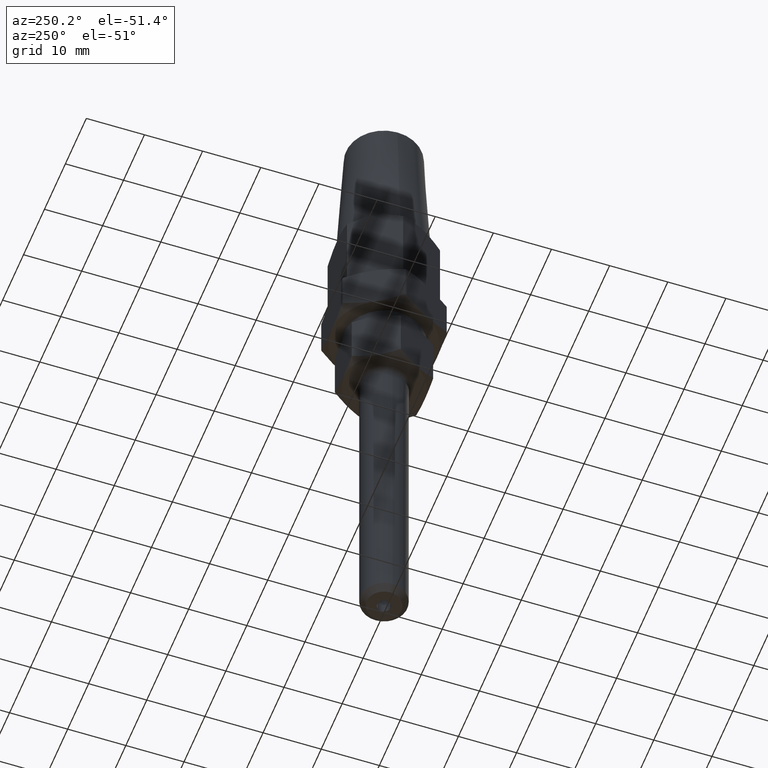
[diagram: clean part render]
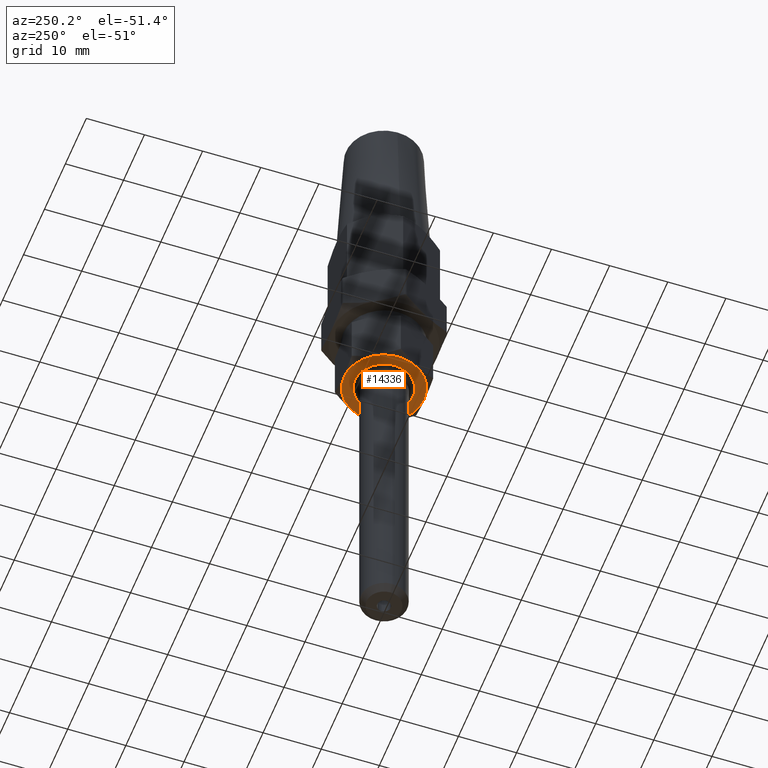
[diagram: same view with one face highlighted and labeled with its STEP entity id]
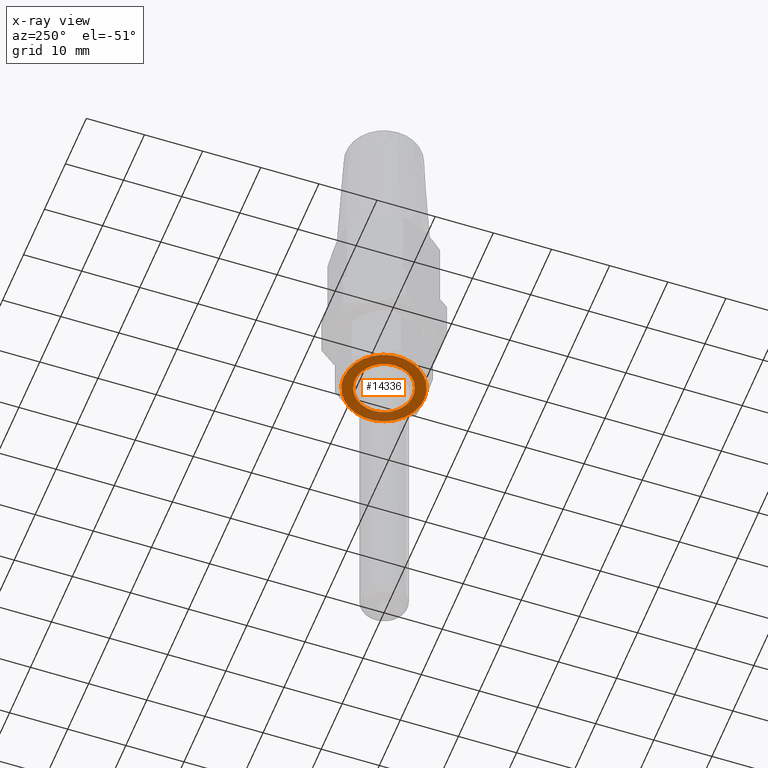
[diagram: x-ray of the same camera — body ghosted, the highlighted face saturated]
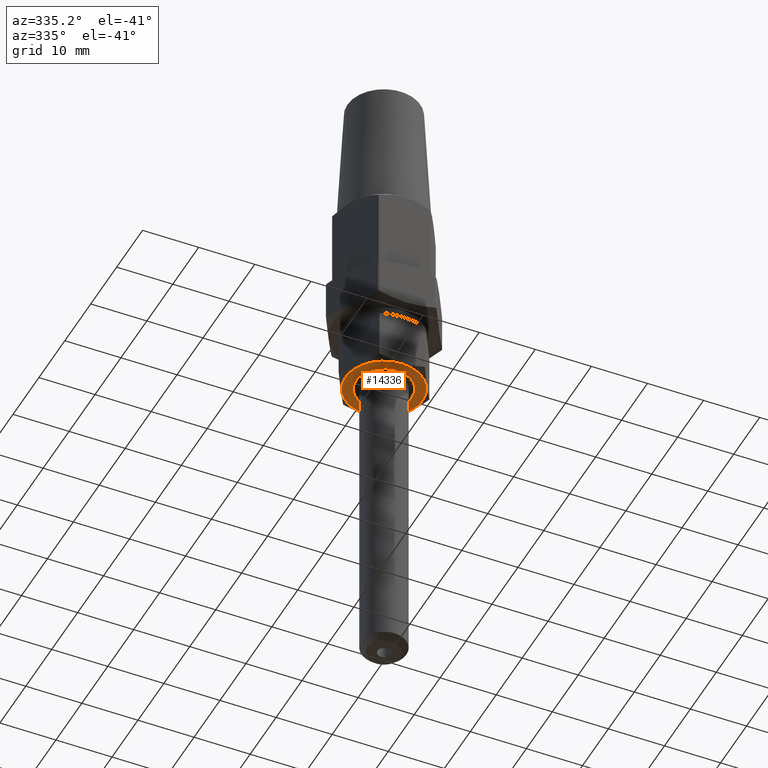
[diagram: same view with one face highlighted and labeled with its STEP entity id]
A machine part, auxiliary view. The second image highlights one B-rep face of the part: STEP entity #14336.
The next image is the same camera in x-ray: the body ghosted, the highlighted face saturated — about 16% of this face is hidden behind the body in this view.
A second angle (auxiliary view) of the same face is appended — the face is thin or edge-on in the first view.
In plain terms, the highlighted planar face has unit normal (0, 0, 1).
Its self-contained STEP definition (entity closure, byte-faithful):
#170 = CARTESIAN_POINT ( 'NONE',  ( 0.0000000000000000000, -9.594994821473701100E-016, -5.000000000000000900 ) ) ;
#192 = ORIENTED_EDGE ( 'NONE', *, *, #11406, .T. ) ;
#736 = CIRCLE ( 'NONE', #14341, 5.000000000000000000 ) ;
#1330 = EDGE_LOOP ( 'NONE', ( #192, #10756 ) ) ;
#1537 = PLANE ( 'NONE',  #9778 ) ;
#2221 = CIRCLE ( 'NONE', #10115, 5.000000000000000000 ) ;
#3101 = CARTESIAN_POINT ( 'NONE',  ( 0.0000000000000000000, -9.594994821473701100E-016, -5.000000000000000900 ) ) ;
#4307 = FACE_BOUND ( 'NONE', #1330, .T. ) ;
#5494 = EDGE_CURVE ( 'NONE', #17302, #17875, #736, .T. ) ;
#5607 = CARTESIAN_POINT ( 'NONE',  ( 0.0000000000000000000, 0.0000000000000000000, -5.000000000000000000 ) ) ;
#5779 = CARTESIAN_POINT ( 'NONE',  ( 5.000000000000000000, 0.0000000000000000000, -4.999999999999999100 ) ) ;
#5989 = ORIENTED_EDGE ( 'NONE', *, *, #10354, .T. ) ;
#6754 = CARTESIAN_POINT ( 'NONE',  ( 0.0000000000000000000, 6.899999999999998600, -5.000000000000002700 ) ) ;
#7086 = DIRECTION ( 'NONE',  ( 0.0000000000000000000, -0.0000000000000000000, 1.000000000000000000 ) ) ;
#7251 = VERTEX_POINT ( 'NONE', #6754 ) ;
#7515 = CIRCLE ( 'NONE', #7791, 6.899999999999998600 ) ;
#7593 = DIRECTION ( 'NONE',  ( 0.0000000000000000000, -0.0000000000000000000, 1.000000000000000000 ) ) ;
#7791 = AXIS2_PLACEMENT_3D ( 'NONE', #170, #13378, #19277 ) ;
#7962 = EDGE_LOOP ( 'NONE', ( #17871, #5989 ) ) ;
#8398 = DIRECTION ( 'NONE',  ( 1.000000000000000000, 0.0000000000000000000, 0.0000000000000000000 ) ) ;
#8801 = DIRECTION ( 'NONE',  ( 0.0000000000000000000, -0.0000000000000000000, 1.000000000000000000 ) ) ;
#9033 = DIRECTION ( 'NONE',  ( 1.000000000000000000, 0.0000000000000000000, 0.0000000000000000000 ) ) ;
#9778 = AXIS2_PLACEMENT_3D ( 'NONE', #10228, #8801, #11925 ) ;
#10115 = AXIS2_PLACEMENT_3D ( 'NONE', #5607, #7086, #8398 ) ;
#10228 = CARTESIAN_POINT ( 'NONE',  ( 0.0000000000000000000, 0.0000000000000000000, -5.000000000000000000 ) ) ;
#10255 = DIRECTION ( 'NONE',  ( 0.0000000000000000000, 1.000000000000000000, -2.514091994169286200E-016 ) ) ;
#10339 = CARTESIAN_POINT ( 'NONE',  ( 0.0000000000000000000, 0.0000000000000000000, -5.000000000000000000 ) ) ;
#10354 = EDGE_CURVE ( 'NONE', #17065, #7251, #18542, .T. ) ;
#10756 = ORIENTED_EDGE ( 'NONE', *, *, #5494, .T. ) ;
#10969 = AXIS2_PLACEMENT_3D ( 'NONE', #3101, #13534, #10255 ) ;
#11406 = EDGE_CURVE ( 'NONE', #17875, #17302, #2221, .T. ) ;
#11925 = DIRECTION ( 'NONE',  ( 1.000000000000000000, 0.0000000000000000000, -0.0000000000000000000 ) ) ;
#12234 = CARTESIAN_POINT ( 'NONE',  ( -8.450062914116734700E-016, -6.899999999999998600, -4.999999999999999100 ) ) ;
#13378 = DIRECTION ( 'NONE',  ( -0.0000000000000000000, -1.918998964294740100E-016, -1.000000000000000000 ) ) ;
#13534 = DIRECTION ( 'NONE',  ( -0.0000000000000000000, -1.918998964294740100E-016, -1.000000000000000000 ) ) ;
#14336 = ADVANCED_FACE ( 'NONE', ( #4307, #19181 ), #1537, .F. ) ;
#14341 = AXIS2_PLACEMENT_3D ( 'NONE', #10339, #7593, #9033 ) ;
#15266 = EDGE_CURVE ( 'NONE', #7251, #17065, #7515, .T. ) ;
#17065 = VERTEX_POINT ( 'NONE', #12234 ) ;
#17302 = VERTEX_POINT ( 'NONE', #18916 ) ;
#17871 = ORIENTED_EDGE ( 'NONE', *, *, #15266, .T. ) ;
#17875 = VERTEX_POINT ( 'NONE', #5779 ) ;
#18542 = CIRCLE ( 'NONE', #10969, 6.899999999999998600 ) ;
#18916 = CARTESIAN_POINT ( 'NONE',  ( -5.000000000000000000, 6.123233995736766300E-016, -4.999999999999999100 ) ) ;
#19181 = FACE_OUTER_BOUND ( 'NONE', #7962, .T. ) ;
#19277 = DIRECTION ( 'NONE',  ( 0.0000000000000000000, 1.000000000000000000, -2.514091994169286200E-016 ) ) ;